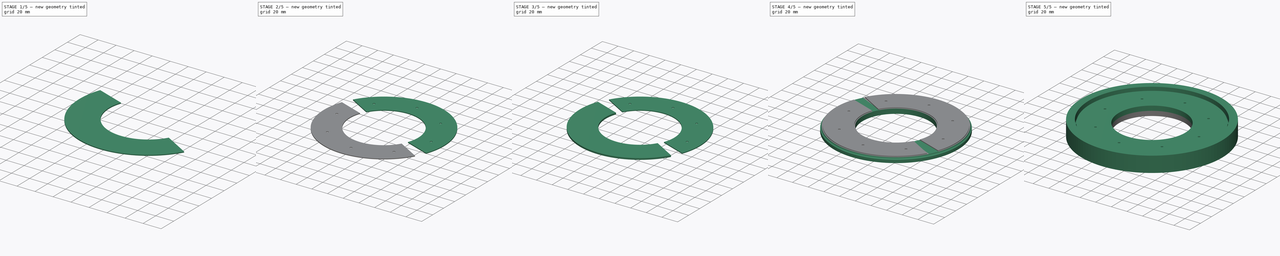
[diagram: build sequence overview — one tinted view per stage of 5, left to right]
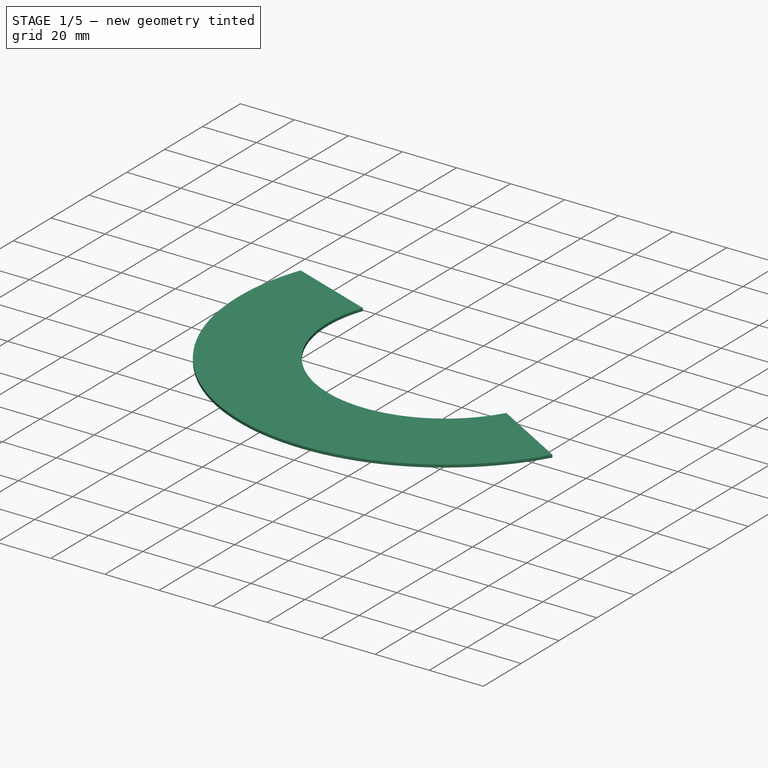
[diagram: stage 1 of 5 — iso view after this stage's code; geometry added in this stage tinted green]
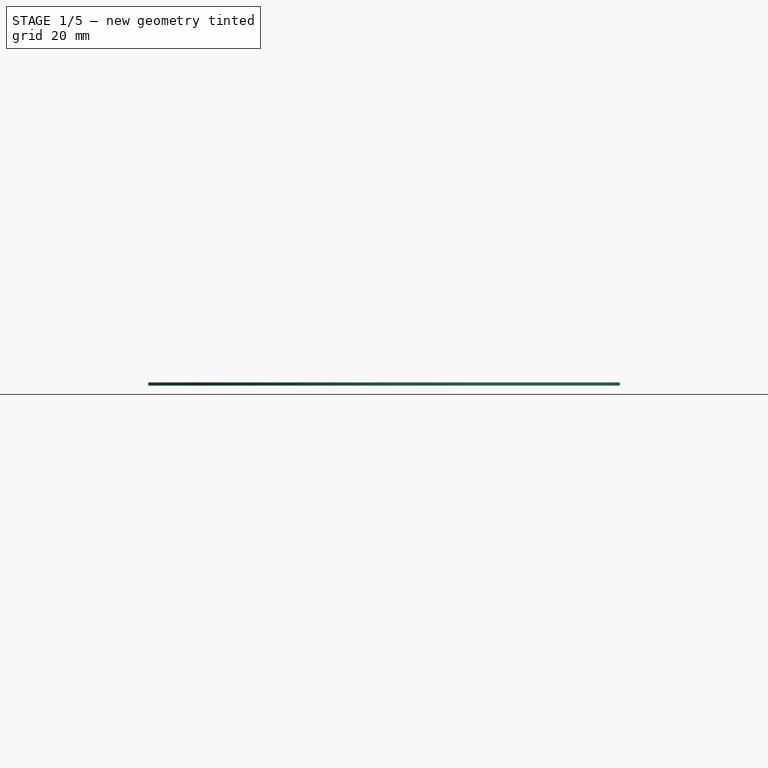
[diagram: stage 1 of 5 — front view after this stage's code; geometry added in this stage tinted green]
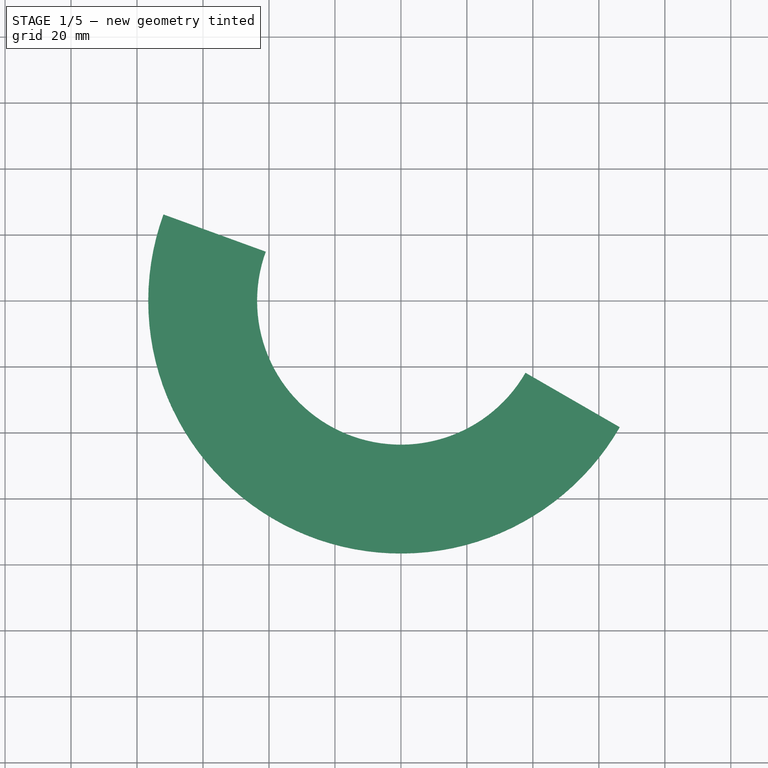
[diagram: stage 1 of 5 — top view after this stage's code; geometry added in this stage tinted green]
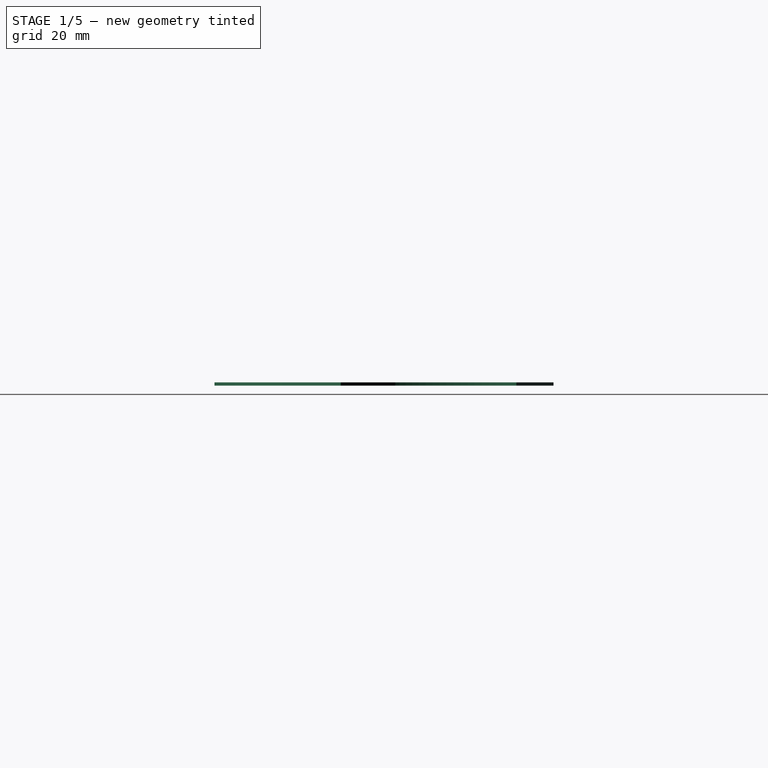
[diagram: stage 1 of 5 — right view after this stage's code; geometry added in this stage tinted green]
FCSTD DOCUMENT  (FreeCAD 0.20R29177 (Git))
Label: Bearing generator
License: All rights reserved
LicenseURL: http://en.wikipedia.org/wiki/All_rights_reserved
objects: Sketcher::SketchObject×6, Part::Cut×6, Part::FeaturePython×6, Part::Extrusion×4, App::DocumentObjectGroup×4, Part::Revolution×3, Spreadsheet::Sheet×1
note: 25 computed .brp shape members not serialized (recipe doc carries the construction recipe); baked Part::Feature solids carry a one-line shape summary decoded from their .brp

FEATURE [App::DocumentObjectGroup] Group  label="Bearing Set"
  Group = -> [Revolve001,Cut,Cut001]
FEATURE [Sketcher::SketchObject] Sketch005
  FullyConstrained = true
  expr: Constraints[10] = Spreadsheet.od_spacer
  expr: Constraints[11] = Spreadsheet.od_spacer
  expr: Constraints[12] = Spreadsheet.od_spacer
  expr: Constraints[29] = Spreadsheet.id_spacer
  expr: Constraints[30] = Spreadsheet.id_spacer
  sketch-geometry (15):
    g0: LineSegment StartX=0 StartY=0 StartZ=0 EndX=-71.9805 EndY=26.1987 EndZ=0
    g1: LineSegment StartX=0 StartY=0 StartZ=0 EndX=-66.3375 EndY=38.3 EndZ=0
    g2: LineSegment StartX=0 StartY=0 StartZ=0 EndX=66.3375 EndY=-38.3 EndZ=0
    g3: LineSegment StartX=0 StartY=0 StartZ=0 EndX=71.9805 EndY=-26.1987 EndZ=0
    g4: LineSegment StartX=0 StartY=0 StartZ=0 EndX=-76.6 EndY=0 EndZ=0
    g5: ArcOfCircle CenterX=0 CenterY=0 CenterZ=0 NormalX=0 NormalY=0 NormalZ=1 AngleXU=0 Radius=76.6 StartAngle=2.61799 EndAngle=2.79253
    g6: ArcOfCircle CenterX=0 CenterY=0 CenterZ=0 NormalX=0 NormalY=0 NormalZ=1 AngleXU=0 Radius=43.6 StartAngle=2.61799 EndAngle=2.79253
    g7: ArcOfCircle CenterX=0 CenterY=0 CenterZ=0 NormalX=0 NormalY=0 NormalZ=1 AngleXU=0 Radius=76.6 StartAngle=5.75959 EndAngle=5.93412
    g8: ArcOfCircle CenterX=0 CenterY=0 CenterZ=0 NormalX=0 NormalY=0 NormalZ=1 AngleXU=0 Radius=43.6 StartAngle=5.75959 EndAngle=5.93412
    g9: LineSegment StartX=0 StartY=0 StartZ=0 EndX=-40.9706 EndY=14.9121 EndZ=0
    g10: LineSegment StartX=0 StartY=0 StartZ=0 EndX=37.7587 EndY=-21.8 EndZ=0
    g11: LineSegment StartX=-37.7587 StartY=21.8 StartZ=0 EndX=-66.3375 EndY=38.3 EndZ=0
    g12: LineSegment StartX=-40.9706 StartY=14.9121 StartZ=0 EndX=-71.9805 EndY=26.1987 EndZ=0
    g13: LineSegment StartX=37.7587 StartY=-21.8 StartZ=0 EndX=66.3375 EndY=-38.3 EndZ=0
    g14: LineSegment StartX=40.9706 StartY=-14.9121 StartZ=0 EndX=71.9805 EndY=-26.1987 EndZ=0
  constraints (39):
    c: Coincident(g0,g-1)
    c: Coincident(g1,g-1)
    c: Coincident(g2,g-1)
    c: Coincident(g3,g-1)
    c: Coincident(g4,g-1)
    c: PointOnObject(g4,g-1)
    c: Angle(g0,g4) = 0.349066
    c: Angle(g1,g0) = 0.174533
    c: Parallel(g2,g1)
    c: Parallel(g3,g0)
    c: Distance(g4) = 76.6
    c: Distance(g0) = 76.6
    c: Distance(g3) = 76.6
    c: Coincident(g5,g-1)
    c: Coincident(g5,g0)
    c: Coincident(g5,g1)
    c: Coincident(g6,g5)
    c: PointOnObject(g6,g0)
    c: PointOnObject(g6,g1)
    c: Coincident(g7,g5)
    c: Coincident(g7,g2)
    c: Coincident(g7,g3)
    c: Coincident(g8,g5)
    c: PointOnObject(g8,g2)
    c: PointOnObject(g8,g3)
    c: Coincident(g9,g5)
    c: Coincident(g9,g6)
    c: Coincident(g10,g5)
    c: Coincident(g10,g8)
    c: Distance(g9) = 43.6
    c: Distance(g10) = 43.6
    c: Coincident(g11,g6)
    c: Coincident(g11,g5)
    c: Coincident(g12,g6)
    c: Coincident(g12,g5)
    c: Coincident(g13,g8)
    c: Coincident(g13,g7)
    c: Coincident(g14,g8)
    c: Coincident(g14,g7)
FEATURE [Part::Extrusion] Extrude003
  Base = -> Sketch005
  Dir = (0,0,1)
  DirMode = 2
  FaceMakerClass = Part::FaceMakerBullseye
  LengthFwd = 20
  LengthRev = 20
  Solid = true
  Symmetric = false
FEATURE [Sketcher::SketchObject] Sketch004  label="spacer sketch"
  FullyConstrained = true
  expr: Constraints[14] = Spreadsheet.id_spacer
  expr: Constraints[19] = Spreadsheet.id_spacer
  expr: Constraints[20] = Spreadsheet.id_spacer
  expr: Constraints[2] = Spreadsheet.od_spacer
  expr: Constraints[5] = Spreadsheet.od_spacer
  expr: Constraints[6] = Spreadsheet.od_spacer
  sketch-geometry (18):
    g0: LineSegment StartX=0 StartY=0 StartZ=0 EndX=-76.6 EndY=0 EndZ=0
    g1: LineSegment StartX=0 StartY=0 StartZ=0 EndX=-71.9805 EndY=26.1987 EndZ=0
    g2: LineSegment StartX=0 StartY=0 StartZ=0 EndX=-66.3375 EndY=38.3 EndZ=0
    g3: LineSegment StartX=0 StartY=0 StartZ=0 EndX=71.9805 EndY=-26.1987 EndZ=0
    g4: LineSegment StartX=0 StartY=0 StartZ=0 EndX=66.3375 EndY=-38.3 EndZ=0
    g5: LineSegment StartX=0 StartY=0 StartZ=0 EndX=-43.6 EndY=0 EndZ=0
    g6: LineSegment StartX=0 StartY=0 StartZ=0 EndX=-40.9706 EndY=14.9121 EndZ=0
    g7: LineSegment StartX=0 StartY=0 StartZ=0 EndX=-37.7587 EndY=21.8 EndZ=0
    g8: LineSegment StartX=0 StartY=0 StartZ=0 EndX=37.7587 EndY=-21.8 EndZ=0
    g9: LineSegment StartX=0 StartY=0 StartZ=0 EndX=40.9706 EndY=-14.9121 EndZ=0
    g10: ArcOfCircle CenterX=0 CenterY=0 CenterZ=0 NormalX=0 NormalY=0 NormalZ=1 AngleXU=0 Radius=43.6 StartAngle=2.79253 EndAngle=5.75959
    g11: ArcOfCircle CenterX=0 CenterY=0 CenterZ=0 NormalX=0 NormalY=0 NormalZ=1 AngleXU=0 Radius=76.6 StartAngle=2.79253 EndAngle=5.75959
    g12: ArcOfCircle CenterX=0 CenterY=0 CenterZ=0 NormalX=0 NormalY=0 NormalZ=1 AngleXU=0 Radius=76.6 StartAngle=5.93412 EndAngle=8.90118
    g13: ArcOfCircle CenterX=0 CenterY=0 CenterZ=0 NormalX=0 NormalY=0 NormalZ=1 AngleXU=0 Radius=43.6 StartAngle=5.93412 EndAngle=8.90118
    g14: LineSegment StartX=40.9706 StartY=-14.9121 StartZ=0 EndX=71.9805 EndY=-26.1987 EndZ=0
    g15: LineSegment StartX=37.7587 StartY=-21.8 StartZ=0 EndX=66.3375 EndY=-38.3 EndZ=0
    g16: LineSegment StartX=-40.9706 StartY=14.9121 StartZ=0 EndX=-71.9805 EndY=26.1987 EndZ=0
    g17: LineSegment StartX=-37.7587 StartY=21.8 StartZ=0 EndX=-66.3375 EndY=38.3 EndZ=0
  constraints (46):
    c: Coincident(g0,g-1)
    c: PointOnObject(g0,g-1)
    c: Distance(g0) = 76.6
    c: Coincident(g1,g-1)
    c: Coincident(g2,g-1)
    c: Distance(g1) = 76.6
    c: Distance(g2) = 76.6
    c: Angle(g2,g1) = 0.174533
    c: Coincident(g3,g-1)
    c: Coincident(g4,g-1)
    c: Parallel(g3,g1)
    c: Parallel(g4,g2)
    c: Coincident(g5,g-1)
    c: PointOnObject(g5,g0)
    c: Distance(g5) = 43.6
    c: Coincident(g6,g-1)
    c: Coincident(g7,g-1)
    c: Coincident(g8,g-1)
    c: Coincident(g9,g-1)
    c: Distance(g9) = 43.6
    c: Distance(g8) = 43.6
    c: PointOnObject(g8,g4)
    c: PointOnObject(g9,g3)
    c: PointOnObject(g7,g2)
    c: PointOnObject(g6,g1)
    c: Coincident(g10,g-1)
    c: Coincident(g10,g6)
    c: Coincident(g10,g8)
    c: Coincident(g11,g10)
    c: Coincident(g11,g1)
    c: Coincident(g11,g4)
    c: Coincident(g12,g10)
    c: Coincident(g12,g3)
    c: Coincident(g12,g2)
    c: Coincident(g13,g10)
    c: Coincident(g13,g7)
    c: Coincident(g13,g9)
    c: Coincident(g14,g13)
    c: Coincident(g14,g12)
    c: Coincident(g15,g10)
    c: Coincident(g15,g11)
    c: Coincident(g16,g10)
    c: Coincident(g16,g11)
    c: Coincident(g17,g13)
    c: Coincident(g17,g12)
    c: Angle(g1,g0) = 0.349066
FEATURE [Part::Extrusion] Extrude001
  Base = -> Sketch004
  Dir = (0,0,1)
  DirMode = 2
  FaceMakerClass = Part::FaceMakerBullseye
  LengthFwd = 0.5
  LengthRev = 0.5
  Solid = true
  Symmetric = false
FEATURE [Part::FeaturePython] Slice001  # WARN: FeaturePython — macro-defined, semantics opaque (R4)
  Base = -> Extrude001
  Mode = 1
  Tolerance = 0
  Tools = -> [Extrude003]
FEATURE [Part::FeaturePython] Slice001_child1  label="Slice001.1"  # WARN: FeaturePython — macro-defined, semantics opaque (R4)
  Base = -> Slice001
  FilterType = 1
  Invert = false
  OverrideMaxVal = 0
  WindowFrom = 80
  WindowTo = 100
  items = 1
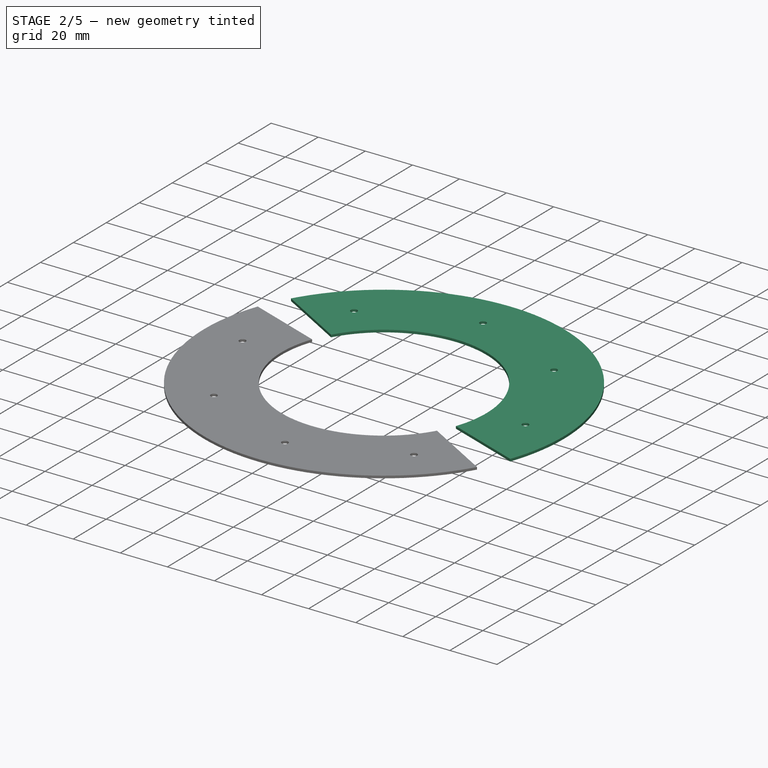
[diagram: stage 2 of 5 — iso view after this stage's code; geometry added in this stage tinted green]
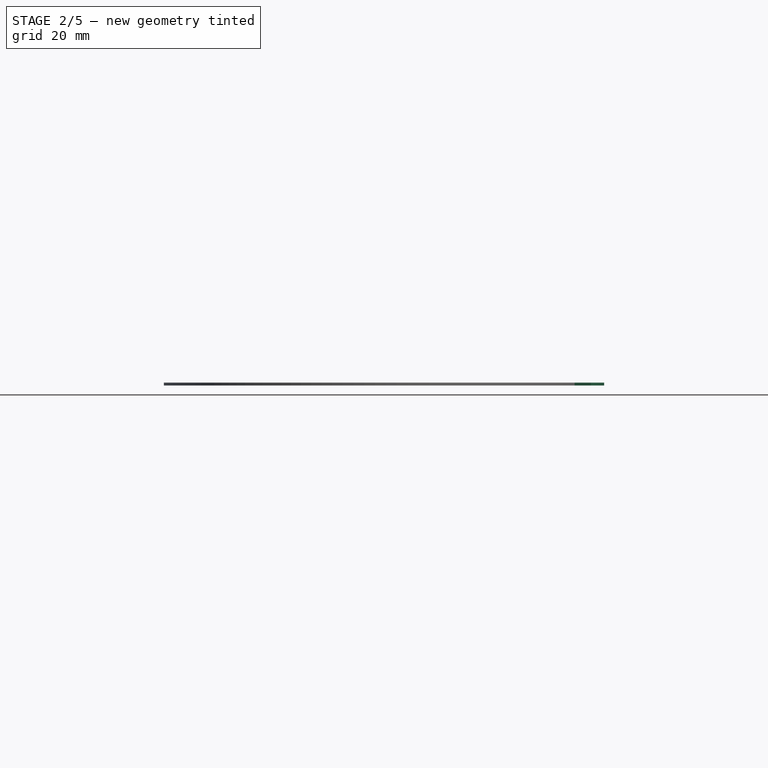
[diagram: stage 2 of 5 — front view after this stage's code; geometry added in this stage tinted green]
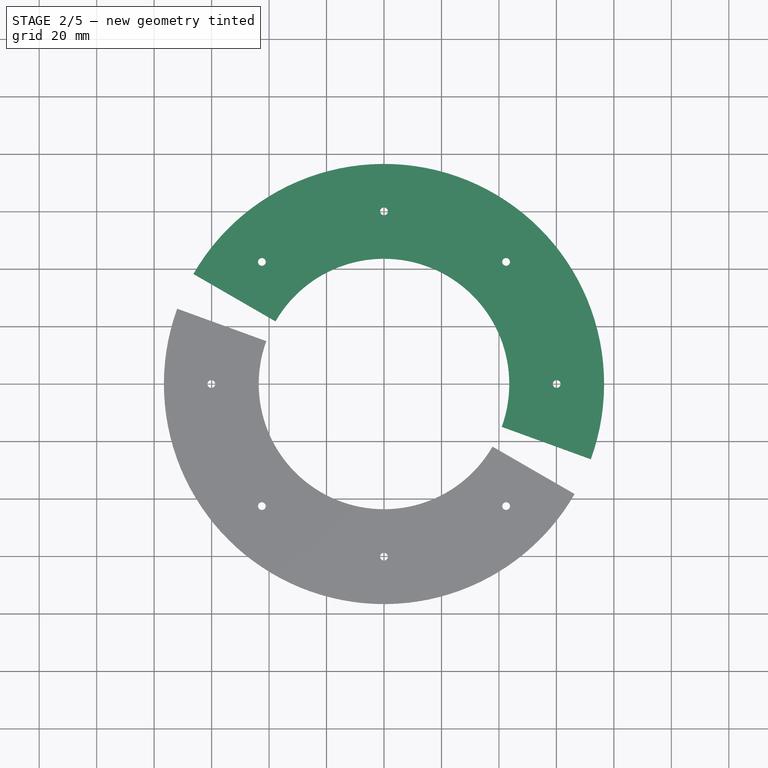
[diagram: stage 2 of 5 — top view after this stage's code; geometry added in this stage tinted green]
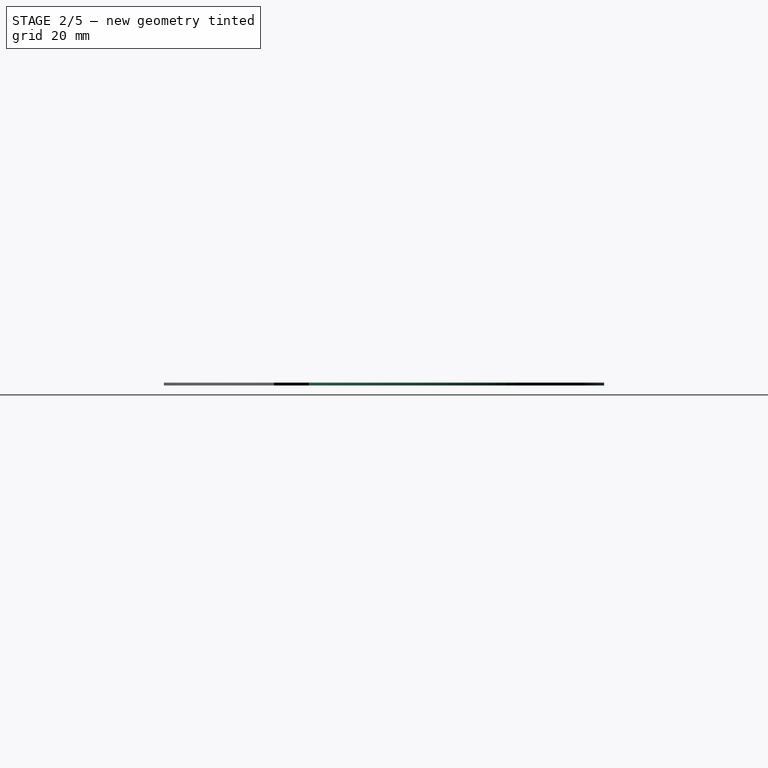
[diagram: stage 2 of 5 — right view after this stage's code; geometry added in this stage tinted green]
FEATURE [Sketcher::SketchObject] Sketch003
  FullyConstrained = true
  expr: Constraints[1] = Spreadsheet.hole_location
  expr: Constraints[33] = Spreadsheet.hole_diameter
  expr: Constraints[34] = Spreadsheet.hole_diameter
  expr: Constraints[35] = Spreadsheet.hole_diameter
  expr: Constraints[36] = Spreadsheet.hole_diameter
  expr: Constraints[37] = Spreadsheet.hole_diameter
  expr: Constraints[38] = Spreadsheet.hole_diameter
  expr: Constraints[39] = Spreadsheet.hole_diameter
  expr: Constraints[40] = Spreadsheet.hole_diameter
  sketch-geometry (17):
    g0: Circle CenterX=0 CenterY=0 CenterZ=0 NormalX=0 NormalY=0 NormalZ=1 AngleXU=0 Radius=60.1
    g1: Circle CenterX=42.4971 CenterY=42.4971 CenterZ=0 NormalX=0 NormalY=0 NormalZ=1 AngleXU=0 Radius=1.35
    g2: Circle CenterX=2e-16 CenterY=60.1 CenterZ=0 NormalX=0 NormalY=0 NormalZ=1 AngleXU=0 Radius=1.35
    g3: Circle CenterX=-42.4971 CenterY=42.4971 CenterZ=0 NormalX=0 NormalY=0 NormalZ=1 AngleXU=0 Radius=1.35
    g4: Circle CenterX=-60.1 CenterY=0 CenterZ=0 NormalX=0 NormalY=0 NormalZ=1 AngleXU=0 Radius=1.35
    g5: Circle CenterX=-42.4971 CenterY=-42.4971 CenterZ=0 NormalX=0 NormalY=0 NormalZ=1 AngleXU=0 Radius=1.35
    g6: Circle CenterX=3.7e-15 CenterY=-60.1 CenterZ=0 NormalX=0 NormalY=0 NormalZ=1 AngleXU=0 Radius=1.35
    g7: Circle CenterX=42.4971 CenterY=-42.4971 CenterZ=0 NormalX=0 NormalY=0 NormalZ=1 AngleXU=0 Radius=1.35
    g8: Circle CenterX=60.1 CenterY=1.2e-15 CenterZ=0 NormalX=0 NormalY=0 NormalZ=1 AngleXU=0 Radius=1.35
    g9: LineSegment StartX=0 StartY=0 StartZ=0 EndX=-60.1 EndY=0 EndZ=0
    g10: LineSegment StartX=0 StartY=0 StartZ=0 EndX=-42.4971 EndY=42.4971 EndZ=0
    g11: LineSegment StartX=0 StartY=0 StartZ=0 EndX=2e-16 EndY=60.1 EndZ=0
    g12: LineSegment StartX=0 StartY=0 StartZ=0 EndX=42.4971 EndY=42.4971 EndZ=0
    g13: LineSegment StartX=0 StartY=0 StartZ=0 EndX=60.1 EndY=1.2e-15 EndZ=0
    g14: LineSegment StartX=0 StartY=0 StartZ=0 EndX=42.4971 EndY=-42.4971 EndZ=0
    g15: LineSegment StartX=0 StartY=0 StartZ=0 EndX=3.7e-15 EndY=-60.1 EndZ=0
    g16: LineSegment StartX=0 StartY=0 StartZ=0 EndX=-42.4971 EndY=-42.4971 EndZ=0
  constraints (42):
    c: Coincident(g0,g-1)
    c: Radius(g0) = 60.1
    c: PointOnObject(g1,g0)
    c: PointOnObject(g2,g0)
    c: PointOnObject(g3,g0)
    c: PointOnObject(g4,g0)
    c: PointOnObject(g5,g0)
    c: PointOnObject(g6,g0)
    c: PointOnObject(g7,g0)
    c: PointOnObject(g8,g0)
    c: Coincident(g9,g-1)
    c: Coincident(g9,g4)
    c: Coincident(g10,g-1)
    c: Coincident(g10,g3)
    c: Coincident(g11,g-1)
    c: Coincident(g11,g2)
    c: Coincident(g12,g-1)
    c: Coincident(g12,g1)
    c: Coincident(g13,g-1)
    c: Coincident(g13,g8)
    c: Coincident(g14,g-1)
    c: Coincident(g14,g7)
    c: Coincident(g15,g-1)
    c: Coincident(g15,g6)
    c: Coincident(g16,g-1)
    c: Coincident(g16,g5)
    c: Angle(g16,g14) = 1.5708
    c: Angle(g12,g10) = 1.5708
    c: Angle(g14,g12) = 1.5708
    c: Angle(g9,g16) = 0.785398
    c: Angle(g9,g15) = 1.5708
    c: Angle(g15,g13) = 1.5708
    c: Angle(g13,g11) = 1.5708
    c: Diameter(g4) = 2.7
    c: Diameter(g3) = 2.7
    c: Diameter(g2) = 2.7
    c: Diameter(g1) = 2.7
    c: Diameter(g8) = 2.7
    c: Diameter(g7) = 2.7
    c: Diameter(g6) = 2.7
    c: Diameter(g5) = 2.7
    c: Parallel(g-1,g9)
FEATURE [Part::Extrusion] Extrude  label="hole cut"
  Base = -> Sketch003
  Dir = (0,0,1)
  DirMode = 2
  FaceMakerClass = Part::FaceMakerBullseye
  LengthFwd = 30
  LengthRev = 30
  Solid = true
  Symmetric = false
FEATURE [Part::FeaturePython] Slice001_child0  label="Slice001.0"  # WARN: FeaturePython — macro-defined, semantics opaque (R4)
  Base = -> Slice001
  FilterType = 1
  Invert = false
  OverrideMaxVal = 0
  WindowFrom = 80
  WindowTo = 100
  items = 0
FEATURE [App::DocumentObjectGroup] GrExplode_Slice  label="2 mm spacers"
  Group = -> [Cut002,Cut003]
FEATURE [Part::Cut] Cut004
  Base = -> Slice001_child0
  Tool = -> Extrude
FEATURE [Part::Cut] Cut005
  Base = -> Slice001_child1
  Tool = -> Extrude
FEATURE [App::DocumentObjectGroup] GrExplode_Slice001  label="1 mm spacers"
  Group = -> [Cut004,Cut005]
FEATURE [App::DocumentObjectGroup] Group001  label="spacers"
  Group = -> [Sketch004,GrExplode_Slice,GrExplode_Slice001]
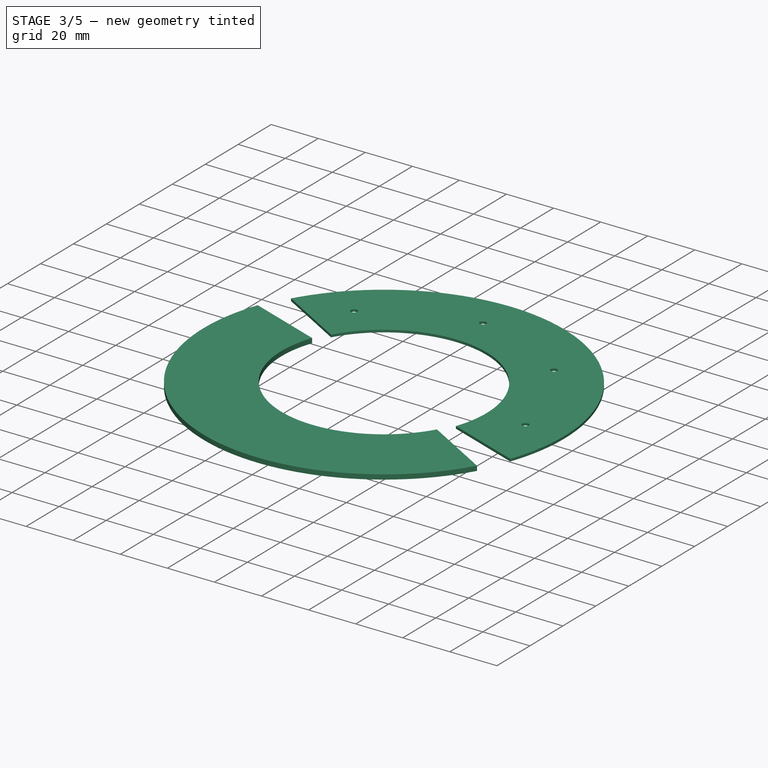
[diagram: stage 3 of 5 — iso view after this stage's code; geometry added in this stage tinted green]
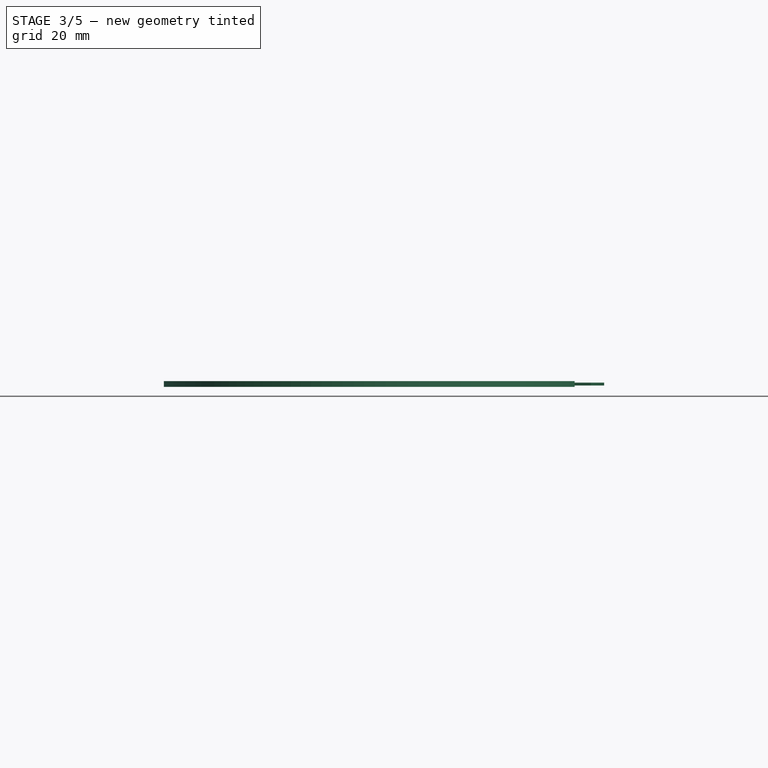
[diagram: stage 3 of 5 — front view after this stage's code; geometry added in this stage tinted green]
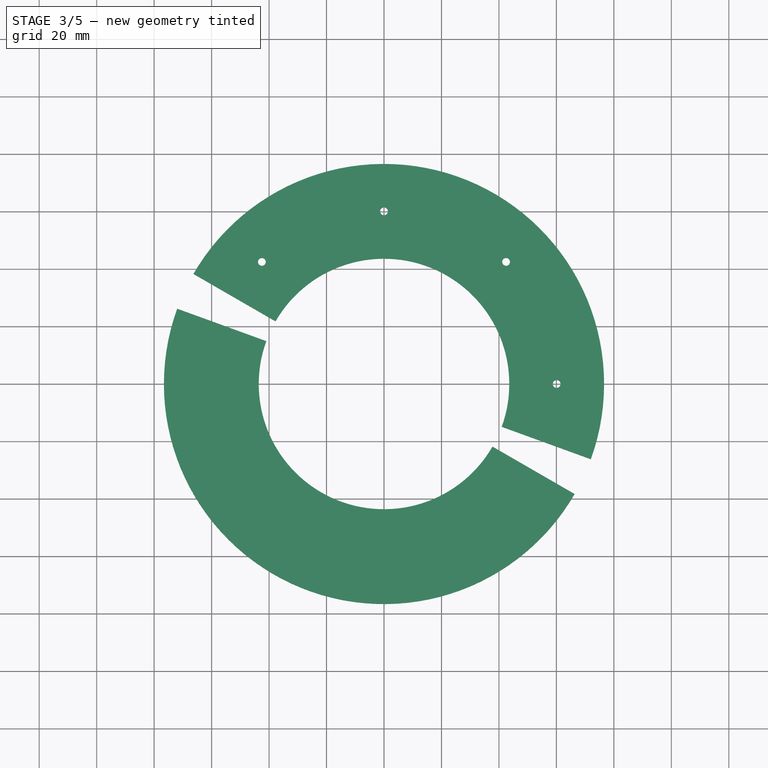
[diagram: stage 3 of 5 — top view after this stage's code; geometry added in this stage tinted green]
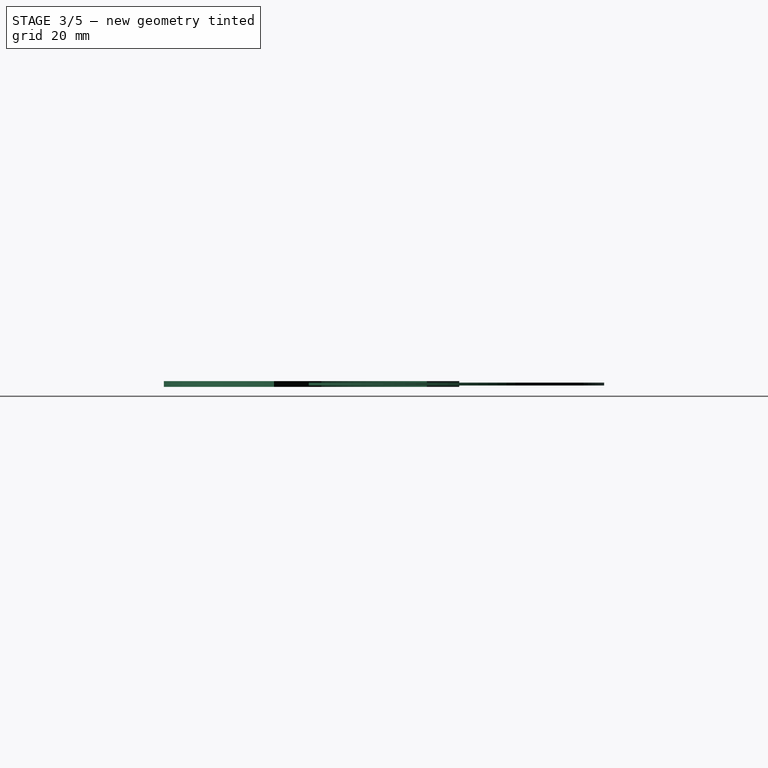
[diagram: stage 3 of 5 — right view after this stage's code; geometry added in this stage tinted green]
FEATURE [Part::Extrusion] Extrude002
  Base = -> Sketch004
  Dir = (0,0,1)
  DirMode = 2
  FaceMakerClass = Part::FaceMakerBullseye
  LengthFwd = 1
  LengthRev = 1
  Solid = true
  Symmetric = false
FEATURE [Part::FeaturePython] Slice  # WARN: FeaturePython — macro-defined, semantics opaque (R4)
  Base = -> Extrude002
  Mode = 1
  Tolerance = 0
  Tools = -> [Extrude003]
FEATURE [Part::FeaturePython] Slice_child1  label="Slice.1"  # WARN: FeaturePython — macro-defined, semantics opaque (R4)
  Base = -> Slice
  FilterType = 1
  Invert = false
  OverrideMaxVal = 0
  WindowFrom = 80
  WindowTo = 100
  items = 1
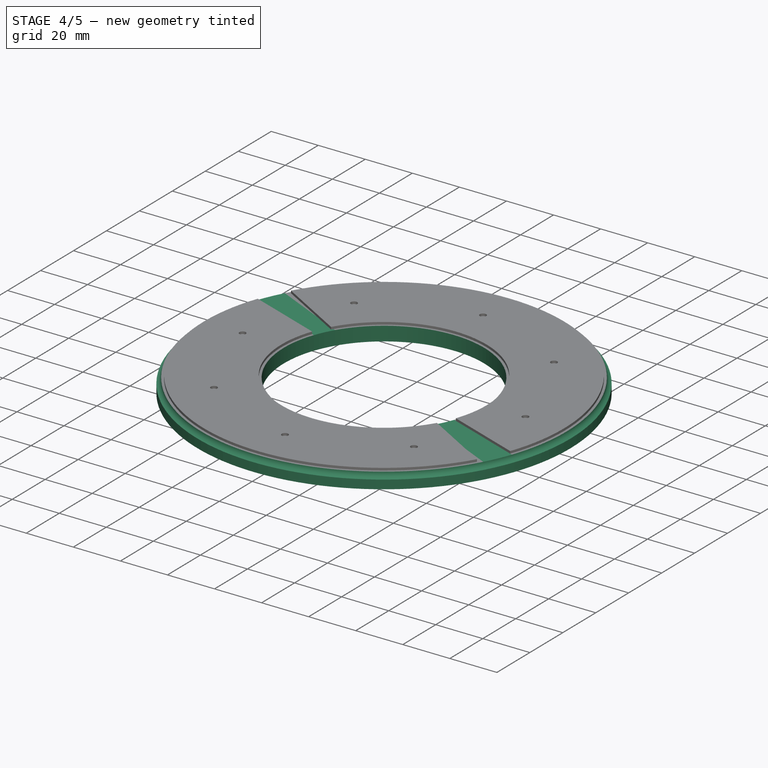
[diagram: stage 4 of 5 — iso view after this stage's code; geometry added in this stage tinted green]
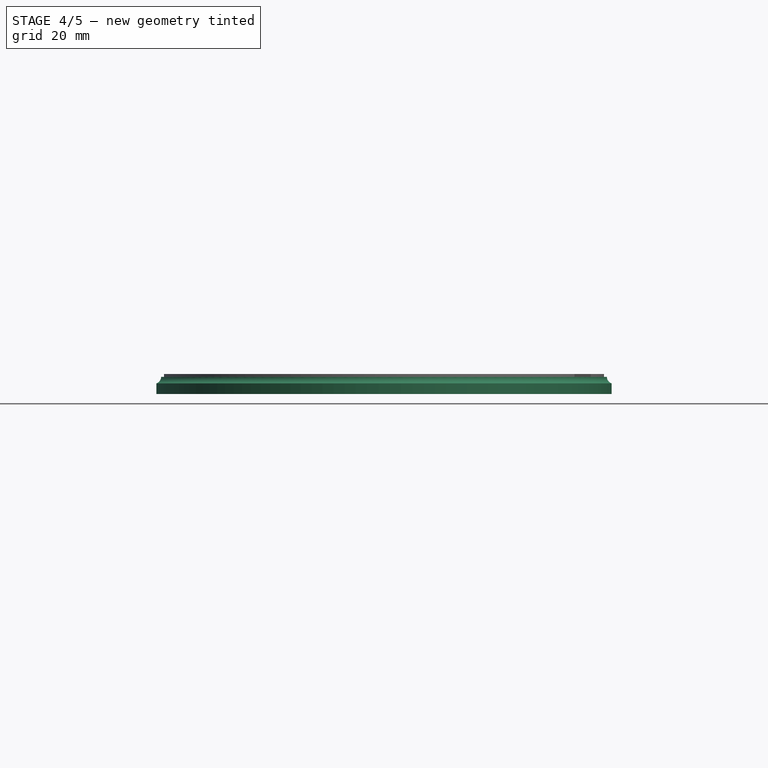
[diagram: stage 4 of 5 — front view after this stage's code; geometry added in this stage tinted green]
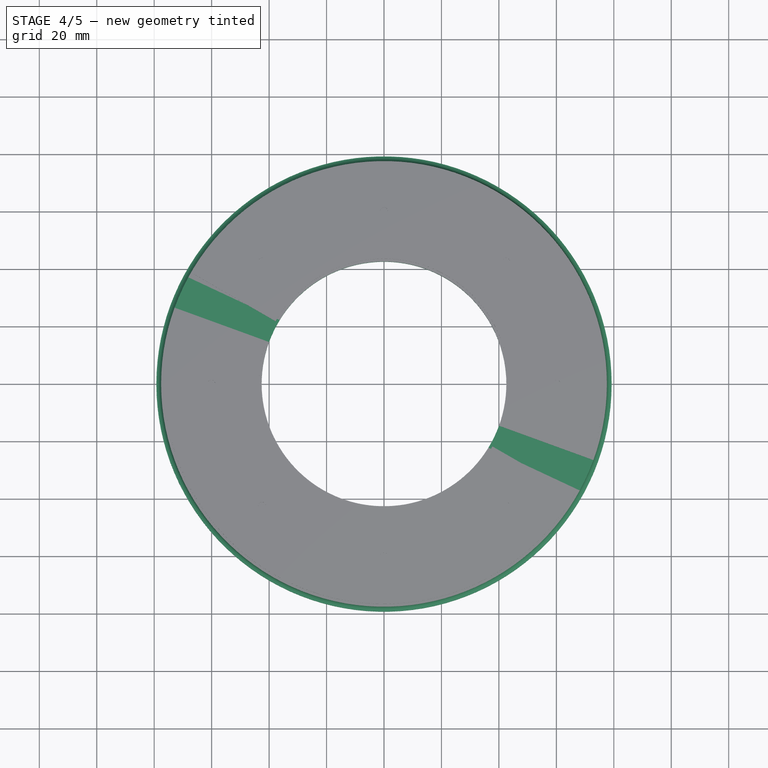
[diagram: stage 4 of 5 — top view after this stage's code; geometry added in this stage tinted green]
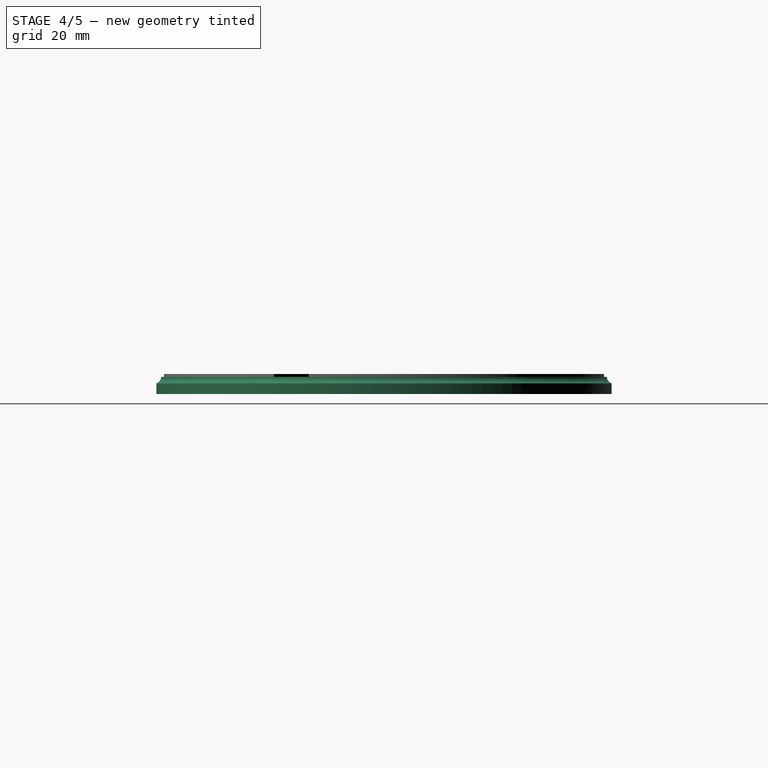
[diagram: stage 4 of 5 — right view after this stage's code; geometry added in this stage tinted green]
FEATURE [Part::Revolution] Revolve002
  Angle = 360
  Axis = (0,0,1)
  Base = (0,0,0)
  FaceMakerClass = Part::FaceMakerBullseye
  Solid = true
  Source = -> Sketch001
  Symmetric = false
FEATURE [Part::FeaturePython] Slice_child0  label="Slice.0"  # WARN: FeaturePython — macro-defined, semantics opaque (R4)
  Base = -> Slice
  FilterType = 1
  Invert = false
  OverrideMaxVal = 0
  WindowFrom = 80
  WindowTo = 100
  items = 0
FEATURE [Part::Cut] Cut002
  Base = -> Slice_child0
  Tool = -> Extrude
FEATURE [Part::Cut] Cut003
  Base = -> Slice_child1
  Tool = -> Extrude
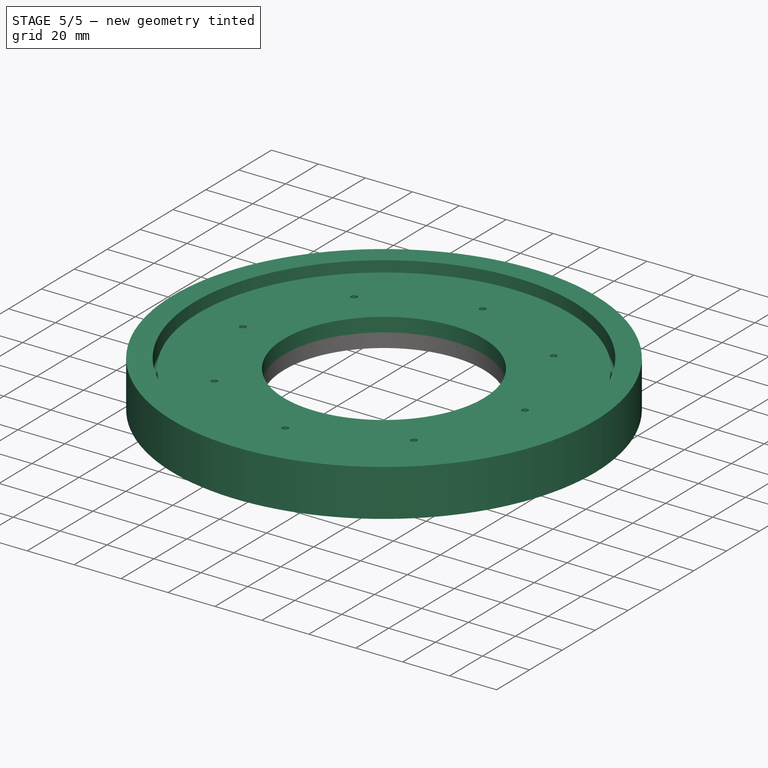
[diagram: stage 5 of 5 — iso view after this stage's code; geometry added in this stage tinted green]
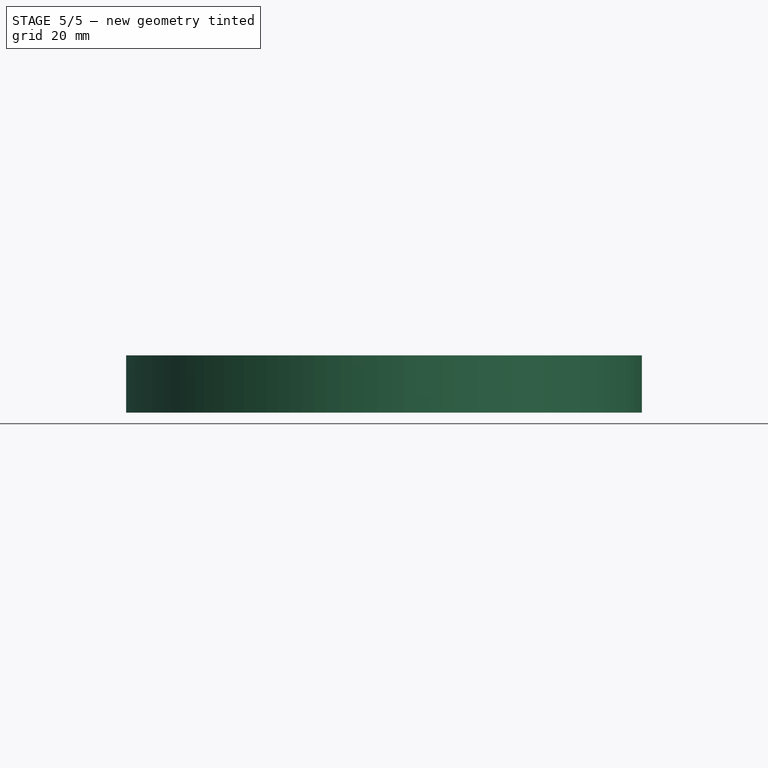
[diagram: stage 5 of 5 — front view after this stage's code; geometry added in this stage tinted green]
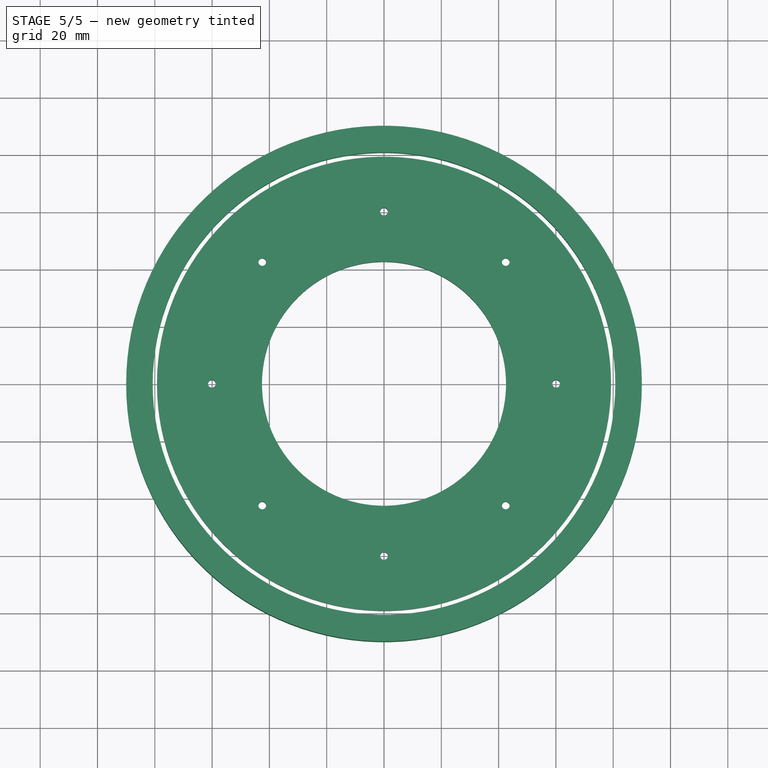
[diagram: stage 5 of 5 — top view after this stage's code; geometry added in this stage tinted green]
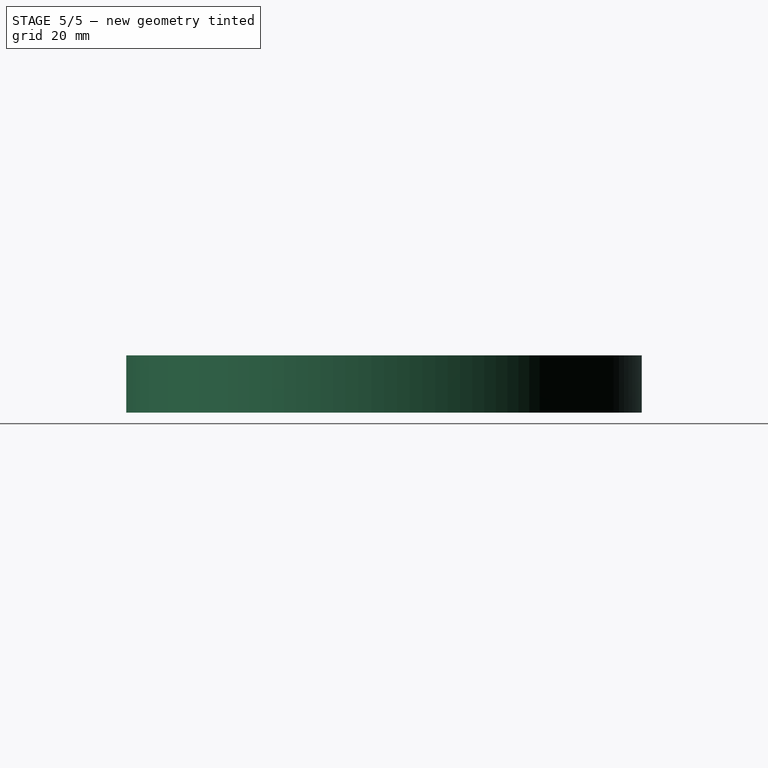
[diagram: stage 5 of 5 — right view after this stage's code; geometry added in this stage tinted green]
FEATURE [Spreadsheet::Sheet] Spreadsheet
  cells = A1=Bearing set; D1=Important Measuments; A2=b_race_cent; B2(b_race_cent)=80; C2=Modifyable; D2=Outer bearing diameter; E2(bearing_diameter_outer)==-1 * B8 * 2; A3=b_race_clearance; B3(b_race_clearance)=0.75; C3=Modifyable ( between 0 and bb_diameter / 2 ); D3=Inner bearing diameter; E3(inner_bearing_hole)==2 * (B2 - (B6 / 2 + B11)); A4=b_race_clear_out; B4(b_race_clear_out)==B2 * -1 - B3; A5=b_race_clear_in; B5(b_race_clear_in)==B2 * -1 + B3; A6=bb_diameter; B6(bb_diameter)=4.8; C6=Modifyable but dont; A7=o_race_max_thick; B7(o_race_max_thick)=10; C7=Modifyable; A8=o_race_max_thick_dist_orgin; B8(o_race_max_thick_dist_orgin)==B2 * -1 - B7; A9=o_race_height; B9(o_race_height)==B13 + B10; A10=o_race_i_race_clear; B10(o_race_i_race_clear)=8; C10=Modifyable; A11=i_race_max_thick; B11(i_race_max_thick)=35; C11=Modifyable; A12=i_race_half_height; B12(i_race_half_height)==B13 / 2; A13=i_race_total_height; B13(i_race_total_height)=12; C13=Modifyable; A15=Bolt pattern; A16=hole_diameter; B16(hole_diameter)=2.7; C16=Modifyable; A17=hole_location; B17(hole_location)==B2 - B11 / 2 - B6 / 2; A19=Bearing inner spacer; A20=od_spacer; B20(od_spacer)==B2 - B6 / 2 - 1; A21=id_spacer; B21(id_spacer)==B2 - B11 - B6 / 2 + 1
FEATURE [Sketcher::SketchObject] Sketch
  FullyConstrained = true
  Placement = pos=(0,0,0) rot=(1,0,0;1.5708rad)
  expr: Constraints[15] = Spreadsheet.i_race_max_thick
  expr: Constraints[18] = Spreadsheet.i_race_half_height
  expr: Constraints[27] = Spreadsheet.b_race_clear_in
  expr: Constraints[2] = Spreadsheet.b_race_cent
  expr: Constraints[4] = Spreadsheet.bb_diameter
  sketch-geometry (11):
    g0: LineSegment StartX=0 StartY=0 StartZ=0 EndX=-80 EndY=0 EndZ=0
    g1: Circle CenterX=-80 CenterY=0 CenterZ=0 NormalX=0 NormalY=0 NormalZ=1 AngleXU=0 Radius=2.4
    g2: LineSegment StartX=-79.25 StartY=0 StartZ=0 EndX=-79.25 EndY=2.2798 EndZ=0
    g3: LineSegment StartX=-79.25 StartY=0 StartZ=0 EndX=-79.25 EndY=-2.2798 EndZ=0
    g4: ArcOfCircle CenterX=-80 CenterY=0 CenterZ=0 NormalX=0 NormalY=0 NormalZ=1 AngleXU=0 Radius=2.4 StartAngle=0 EndAngle=1.25297
    g5: LineSegment StartX=-77.6 StartY=0 StartZ=0 EndX=-42.6 EndY=0 EndZ=0
    g6: LineSegment StartX=-77.6 StartY=0 StartZ=0 EndX=-77.6 EndY=6 EndZ=0
    g7: LineSegment StartX=-79.25 StartY=2.2798 StartZ=0 EndX=-79.25 EndY=6 EndZ=0
    g8: LineSegment StartX=-79.25 StartY=6 StartZ=0 EndX=-42.6 EndY=6 EndZ=0
    g9: LineSegment StartX=-42.6 StartY=6 StartZ=0 EndX=-42.6 EndY=0 EndZ=0
    g10: LineSegment StartX=-42.6 StartY=0 StartZ=0 EndX=0 EndY=0 EndZ=0
  constraints (31):
    c: Coincident(g0,g-1)
    c: PointOnObject(g0,g-1)
    c: Distance(g0) = 80
    c: Coincident(g1,g0)
    c: Diameter(g1) = 4.8
    c: PointOnObject(g2,g0)
    c: PointOnObject(g2,g1)
    c: Vertical(g2)
    c: PointOnObject(g3,g1)
    c: Vertical(g3)
    c: Coincident(g4,g0)
    c: Coincident(g4,g2)
    c: PointOnObject(g4,g0)
    c: Coincident(g5,g4)
    c: PointOnObject(g5,g0)
    c: Distance(g5) = 35
    c: Coincident(g6,g4)
    c: Vertical(g6)
    c: Distance(g6) = 6
    c: Coincident(g7,g4)
    c: Vertical(g7)
    c: Coincident(g8,g7)
    c: Horizontal(g8)
    c: Coincident(g9,g8)
    c: Coincident(g9,g5)
    c: Vertical(g9)
    c: PointOnObject(g6,g8)
    c: DistanceX(g2) = -79.25
    c: Coincident(g3,g2)
    c: Coincident(g10,g5)
    c: Coincident(g0,g10)
FEATURE [Sketcher::SketchObject] Sketch001
  FullyConstrained = true
  Placement = pos=(0,0,0) rot=(1,0,0;1.5708rad)
  expr: Constraints[22] = Spreadsheet.i_race_max_thick
  expr: Constraints[23] = Spreadsheet.i_race_half_height
  expr: Constraints[24] = Spreadsheet.b_race_clear_in
  expr: Constraints[2] = Spreadsheet.b_race_cent
  expr: Constraints[4] = Spreadsheet.bb_diameter
  sketch-geometry (9):
    g0: LineSegment StartX=0 StartY=0 StartZ=0 EndX=-80 EndY=0 EndZ=0
    g1: Circle CenterX=-80 CenterY=0 CenterZ=0 NormalX=0 NormalY=0 NormalZ=1 AngleXU=0 Radius=2.4
    g2: LineSegment StartX=-80 StartY=0 StartZ=0 EndX=-79.25 EndY=0 EndZ=0
    g3: LineSegment StartX=-79.25 StartY=0 StartZ=0 EndX=-79.25 EndY=-2.2798 EndZ=0
    g4: ArcOfCircle CenterX=-80 CenterY=0 CenterZ=0 NormalX=0 NormalY=0 NormalZ=1 AngleXU=0 Radius=2.4 StartAngle=5.03021 EndAngle=6.28319
    g5: LineSegment StartX=-77.6 StartY=0 StartZ=0 EndX=-42.6 EndY=0 EndZ=0
    g6: LineSegment StartX=-42.6 StartY=0 StartZ=0 EndX=-42.6 EndY=-6 EndZ=0
    g7: LineSegment StartX=-42.6 StartY=-6 StartZ=0 EndX=-79.25 EndY=-6 EndZ=0
    g8: LineSegment StartX=-79.25 StartY=-6 StartZ=0 EndX=-79.25 EndY=-2.2798 EndZ=0
  constraints (25):
    c: Coincident(g0,g-1)
    c: PointOnObject(g0,g-1)
    c: Distance(g0) = 80
    c: Coincident(g1,g0)
    c: Diameter(g1) = 4.8
    c: Coincident(g2,g0)
    c: PointOnObject(g2,g0)
    c: Coincident(g3,g2)
    c: PointOnObject(g3,g1)
    c: Vertical(g3)
    c: Coincident(g4,g0)
    c: Coincident(g4,g3)
    c: Coincident(g5,g4)
    c: PointOnObject(g5,g0)
    c: Horizontal(g5)
    c: Coincident(g6,g5)
    c: Vertical(g6)
    c: Coincident(g7,g6)
    c: Horizontal(g7)
    c: Coincident(g8,g7)
    c: Coincident(g8,g4)
    c: Vertical(g8)
    c: Distance(g5) = 35
    c: Distance(g6) = 6
    c: DistanceX(g2) = -79.25
FEATURE [Sketcher::SketchObject] Sketch002
  FullyConstrained = true
  Placement = pos=(0,0,0) rot=(1,0,0;1.5708rad)
  expr: Constraints[23] = Spreadsheet.o_race_height
  expr: Constraints[2] = Spreadsheet.b_race_cent
  expr: Constraints[31] = -1 * Spreadsheet.b_race_clear_out
  expr: Constraints[35] = Spreadsheet.o_race_max_thick_dist_orgin
  expr: Constraints[4] = Spreadsheet.bb_diameter
  sketch-geometry (13):
    g0: LineSegment StartX=0 StartY=0 StartZ=0 EndX=-80 EndY=0 EndZ=0
    g1: Circle CenterX=-80 CenterY=0 CenterZ=0 NormalX=0 NormalY=0 NormalZ=1 AngleXU=0 Radius=2.4
    g2: LineSegment StartX=-80.75 StartY=0 StartZ=0 EndX=-80.75 EndY=2.2798 EndZ=0
    g3: LineSegment StartX=-80.75 StartY=0 StartZ=0 EndX=-80.75 EndY=-2.2798 EndZ=0
    g4: ArcOfCircle CenterX=-80 CenterY=0 CenterZ=0 NormalX=0 NormalY=0 NormalZ=1 AngleXU=0 Radius=2.4 StartAngle=1.88862 EndAngle=4.39457
    g5: LineSegment StartX=-80.75 StartY=2.2798 StartZ=0 EndX=-80.75 EndY=10 EndZ=0
    g6: LineSegment StartX=-80.75 StartY=10 StartZ=0 EndX=-90 EndY=10 EndZ=0
    g7: LineSegment StartX=-80.75 StartY=-2.2798 StartZ=0 EndX=-80.75 EndY=-10 EndZ=0
    g8: LineSegment StartX=-80.75 StartY=-10 StartZ=0 EndX=-90 EndY=-10 EndZ=0
    g9: LineSegment StartX=-90 StartY=-10 StartZ=0 EndX=-90 EndY=10 EndZ=0
    g10: LineSegment StartX=-90 StartY=0 StartZ=0 EndX=-90 EndY=10 EndZ=0
    g11: LineSegment StartX=-90 StartY=-10 StartZ=0 EndX=-90 EndY=0 EndZ=0
    g12: LineSegment StartX=-80.75 StartY=0 StartZ=0 EndX=-90 EndY=0 EndZ=0
  constraints (36):
    c: Coincident(g0,g-1)
    c: PointOnObject(g0,g-1)
    c: Distance(g0) = 80
    c: Coincident(g1,g0)
    c: Diameter(g1) = 4.8
    c: PointOnObject(g2,g-1)
    c: PointOnObject(g2,g1)
    c: Vertical(g2)
    c: Coincident(g4,g0)
    c: Coincident(g4,g2)
    c: Coincident(g4,g3)
    c: Coincident(g5,g4)
    c: Vertical(g5)
    c: Vertical(g3)
    c: Coincident(g6,g5)
    c: Horizontal(g6)
    c: Coincident(g7,g4)
    c: Vertical(g7)
    c: Coincident(g8,g7)
    c: Horizontal(g8)
    c: Coincident(g9,g8)
    c: Coincident(g9,g6)
    c: Vertical(g9)
    c: Distance(g9) = 20
    c: PointOnObject(g10,g-1)
    c: PointOnObject(g10,g6)
    c: Vertical(g10)
    c: PointOnObject(g11,g8)
    c: Coincident(g11,g10)
    c: Equal(g11,g10)
    c: Tangent(g11,g9)
    c: DistanceX(g2,g-1) = 80.75
    c: Coincident(g2,g3)
    c: Coincident(g12,g2)
    c: Coincident(g12,g10)
    c: DistanceX(g10) = -90
FEATURE [Part::Revolution] Revolve
  Angle = 360
  Axis = (0,0,1)
  Base = (0,0,0)
  FaceMakerClass = Part::FaceMakerBullseye
  Solid = true
  Source = -> Sketch
  Symmetric = false
FEATURE [Part::Revolution] Revolve001  label="bearing outer race"
  Angle = 360
  Axis = (0,0,1)
  Base = (0,0,0)
  FaceMakerClass = Part::FaceMakerBullseye
  Solid = true
  Source = -> Sketch002
  Symmetric = false
FEATURE [Part::Cut] Cut  label="bearing inner race upper"
  Base = -> Revolve
  Tool = -> Extrude
FEATURE [Part::Cut] Cut001  label="bearing inner race lower"
  Base = -> Revolve002
  Tool = -> Extrude
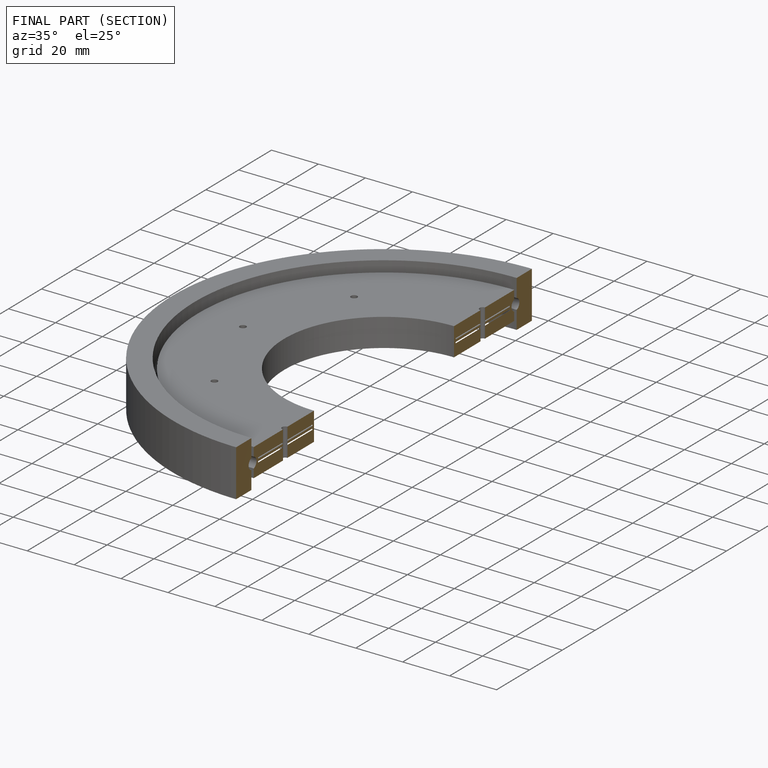
[diagram: finished part — half-section view (interior)]
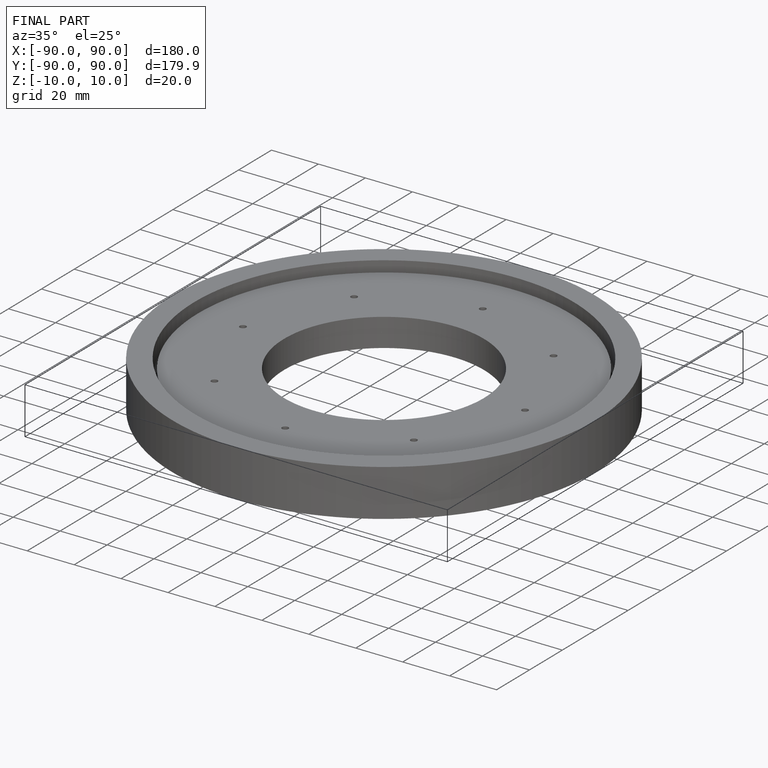
[diagram: finished part — iso view with bounding-box wireframe]
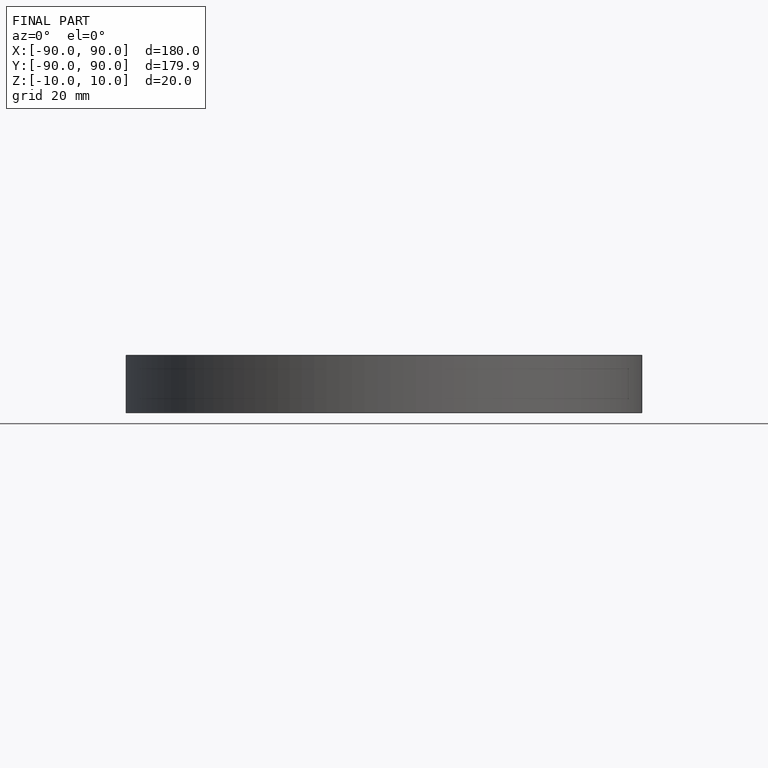
[diagram: finished part — front view with bounding-box wireframe]
